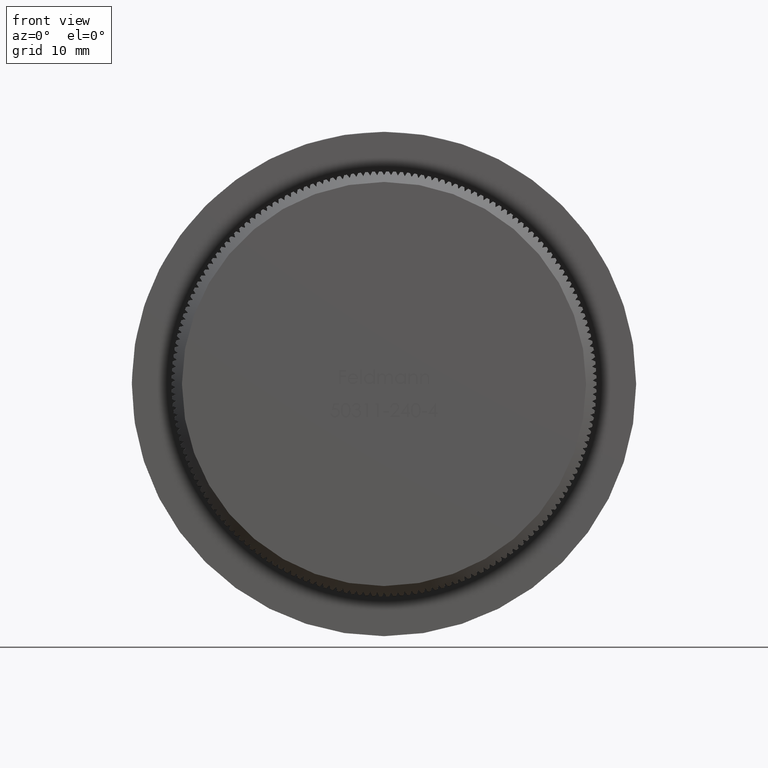
[diagram: clean part render]
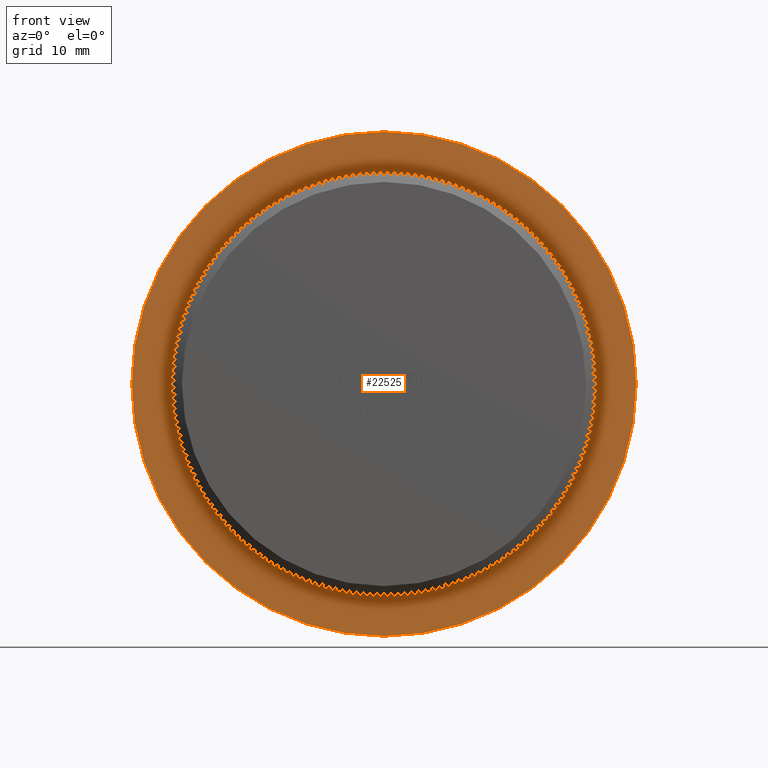
[diagram: same view with one face highlighted and labeled with its STEP entity id]
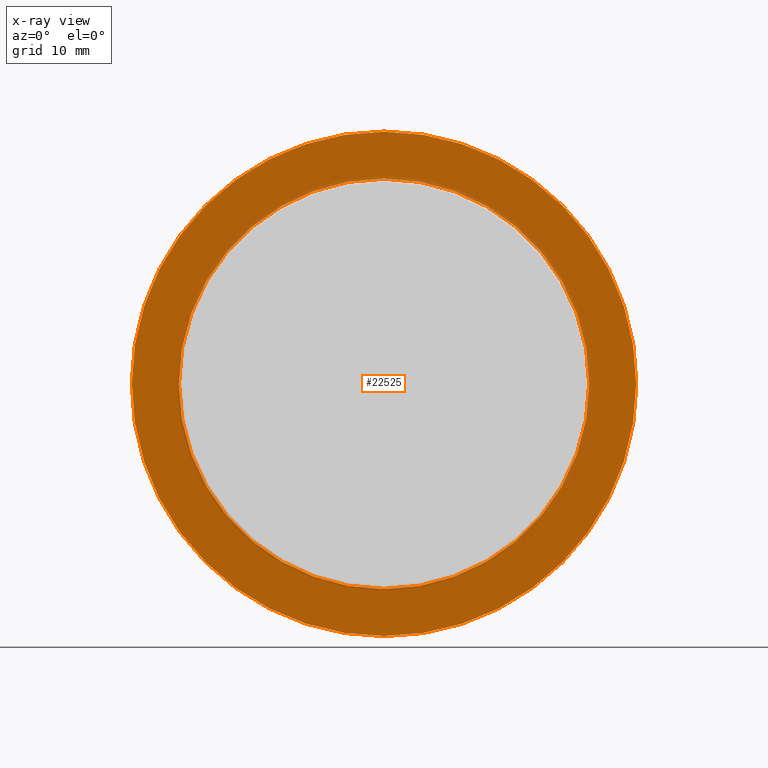
[diagram: x-ray of the same camera — body ghosted, the highlighted face saturated]
A machine part, front view. The second image highlights one B-rep face of the part: STEP entity #22525.
The next image is the same camera in x-ray: the body ghosted, the highlighted face saturated — about 4% of this face is hidden behind the body in this view.
In plain terms, the highlighted planar face has unit normal (0, -1, -0).
Its self-contained STEP definition (entity closure, byte-faithful):
#75 = CIRCLE ( 'NONE', #1512, 24.14999999999999900 ) ;
#1512 = AXIS2_PLACEMENT_3D ( 'NONE', #30666, #10439, #20549 ) ;
#2064 = CARTESIAN_POINT ( 'NONE',  ( 0.0000000000000000000, 8.000000000000000000, 0.0000000000000000000 ) ) ;
#5502 = CARTESIAN_POINT ( 'NONE',  ( 19.65000000000000200, 8.000000000000000000, 0.0000000000000000000 ) ) ;
#6959 = VERTEX_POINT ( 'NONE', #11163 ) ;
#7921 = DIRECTION ( 'NONE',  ( 0.0000000000000000000, -1.000000000000000000, -0.0000000000000000000 ) ) ;
#9493 = CIRCLE ( 'NONE', #15459, 19.65000000000000200 ) ;
#9695 = EDGE_LOOP ( 'NONE', ( #18027 ) ) ;
#10439 = DIRECTION ( 'NONE',  ( -0.0000000000000000000, -1.000000000000000000, -0.0000000000000000000 ) ) ;
#10558 = DIRECTION ( 'NONE',  ( 0.0000000000000000000, 0.0000000000000000000, -1.000000000000000000 ) ) ;
#10668 = PLANE ( 'NONE',  #25434 ) ;
#11163 = CARTESIAN_POINT ( 'NONE',  ( 0.0000000000000000000, 8.000000000000000000, -24.14999999999999900 ) ) ;
#15459 = AXIS2_PLACEMENT_3D ( 'NONE', #2064, #29809, #19654 ) ;
#16166 = FACE_OUTER_BOUND ( 'NONE', #9695, .T. ) ;
#18027 = ORIENTED_EDGE ( 'NONE', *, *, #32096, .T. ) ;
#18760 = CARTESIAN_POINT ( 'NONE',  ( 0.0000000000000000000, 8.000000000000000000, -19.65000000000000200 ) ) ;
#19654 = DIRECTION ( 'NONE',  ( 0.0000000000000000000, 0.0000000000000000000, -1.000000000000000000 ) ) ;
#20549 = DIRECTION ( 'NONE',  ( 0.0000000000000000000, 0.0000000000000000000, -1.000000000000000000 ) ) ;
#21155 = EDGE_CURVE ( 'NONE', #32174, #32174, #9493, .T. ) ;
#22525 = ADVANCED_FACE ( 'NONE', ( #16166, #25270 ), #10668, .T. ) ;
#25270 = FACE_BOUND ( 'NONE', #25538, .T. ) ;
#25434 = AXIS2_PLACEMENT_3D ( 'NONE', #5502, #7921, #10558 ) ;
#25538 = EDGE_LOOP ( 'NONE', ( #27076 ) ) ;
#27076 = ORIENTED_EDGE ( 'NONE', *, *, #21155, .F. ) ;
#29809 = DIRECTION ( 'NONE',  ( -0.0000000000000000000, -1.000000000000000000, -0.0000000000000000000 ) ) ;
#30666 = CARTESIAN_POINT ( 'NONE',  ( 0.0000000000000000000, 8.000000000000000000, 0.0000000000000000000 ) ) ;
#32096 = EDGE_CURVE ( 'NONE', #6959, #6959, #75, .T. ) ;
#32174 = VERTEX_POINT ( 'NONE', #18760 ) ;